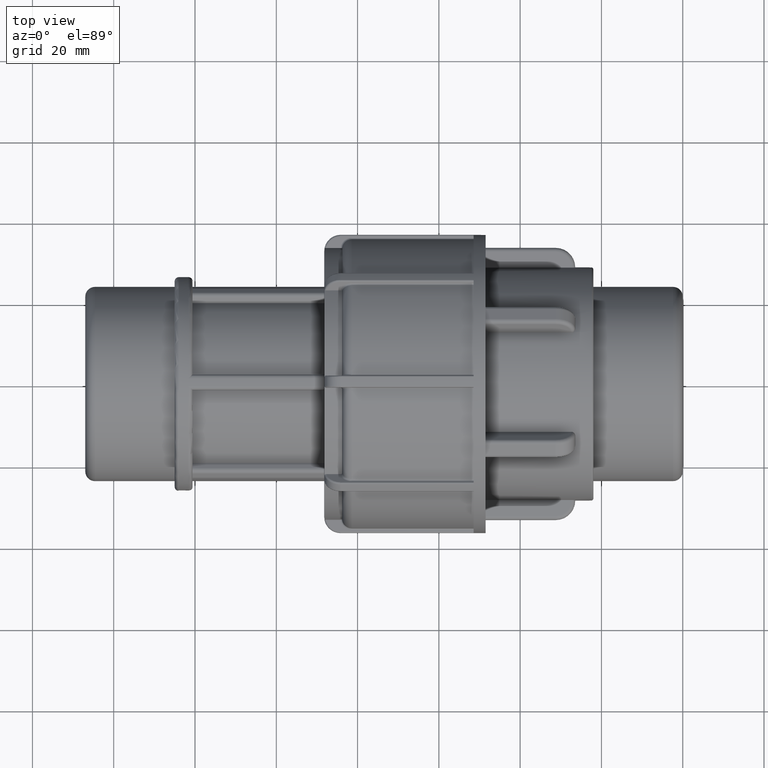
[diagram: clean part render]
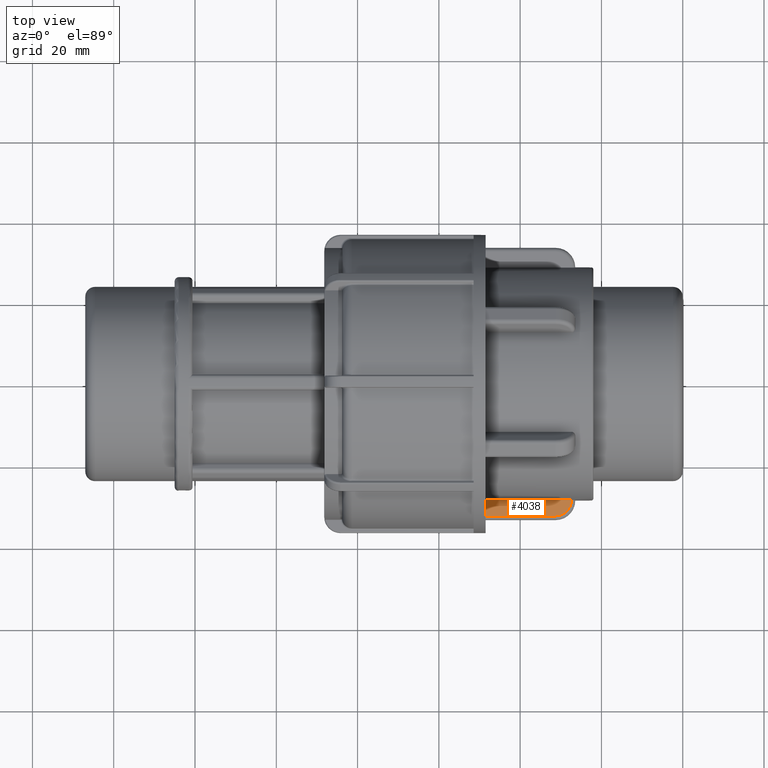
[diagram: same view with one face highlighted and labeled with its STEP entity id]
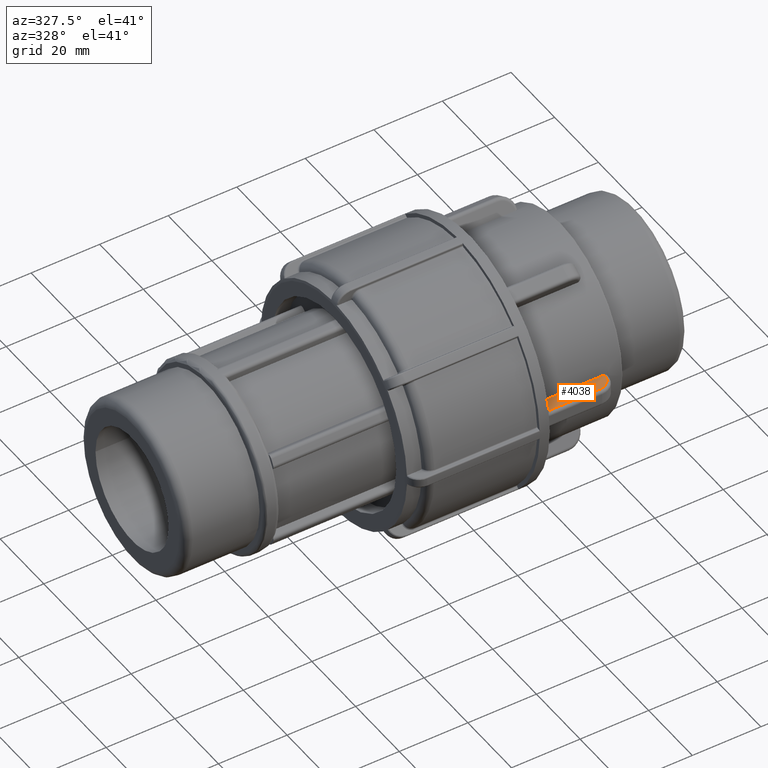
[diagram: same view with one face highlighted and labeled with its STEP entity id]
A machine part, top view. The second image highlights one B-rep face of the part: STEP entity #4038.
A second angle (auxiliary view) of the same face is appended — the face is thin or edge-on in the first view.
In plain terms, the highlighted planar face has unit normal (0, 0, 1).
Its self-contained STEP definition (entity closure, byte-faithful):
#70=PLANE('',#4315);
#195=FACE_OUTER_BOUND('',#445,.T.);
#445=EDGE_LOOP('',(#2717,#2718,#2719,#2720,#2721));
#832=LINE('',#6132,#1094);
#834=LINE('',#6144,#1096);
#835=LINE('',#6147,#1097);
#836=LINE('',#6148,#1098);
#1094=VECTOR('',#4855,0.099763084876181);
#1096=VECTOR('',#4869,17.2697);
#1097=VECTOR('',#4872,21.09394);
#1098=VECTOR('',#4873,3.92400308487618);
#1354=CIRCLE('',#4312,3.82424);
#1630=VERTEX_POINT('',#6116);
#1633=VERTEX_POINT('',#6121);
#1634=VERTEX_POINT('',#6134);
#1636=VERTEX_POINT('',#6140);
#1638=VERTEX_POINT('',#6146);
#2051=EDGE_CURVE('',#1633,#1630,#832,.T.);
#2054=EDGE_CURVE('',#1630,#1634,#1354,.T.);
#2057=EDGE_CURVE('',#1634,#1636,#834,.T.);
#2058=EDGE_CURVE('',#1638,#1633,#835,.T.);
#2059=EDGE_CURVE('',#1636,#1638,#836,.T.);
#2717=ORIENTED_EDGE('',*,*,#2057,.F.);
#2718=ORIENTED_EDGE('',*,*,#2054,.F.);
#2719=ORIENTED_EDGE('',*,*,#2051,.F.);
#2720=ORIENTED_EDGE('',*,*,#2058,.F.);
#2721=ORIENTED_EDGE('',*,*,#2059,.F.);
#4038=ADVANCED_FACE('',(#195),#70,.T.);
#4312=AXIS2_PLACEMENT_3D('',#6138,#4862,#4863);
#4315=AXIS2_PLACEMENT_3D('',#6145,#4870,#4871);
#4855=DIRECTION('',(0.,-1.,3.88578058618805E-16));
#4862=DIRECTION('center_axis',(0.,-3.88578058618805E-16,-1.));
#4863=DIRECTION('ref_axis',(0.707106781186547,-0.707106781186547,2.74766180269661E-16));
#4869=DIRECTION('',(-1.,0.,0.));
#4870=DIRECTION('center_axis',(0.,3.88578058618805E-16,1.));
#4871=DIRECTION('ref_axis',(0.,-1.,3.99680288865056E-16));
#4872=DIRECTION('',(1.,0.,0.));
#4873=DIRECTION('',(0.,1.,-3.88578058618805E-16));
#6116=CARTESIAN_POINT('',(-27.41606,-28.6818,2.39015));
#6121=CARTESIAN_POINT('',(-27.41606,-28.5820369151238,2.39015));
#6132=CARTESIAN_POINT('',(-27.41606,-20.9138125,2.39015));
#6134=CARTESIAN_POINT('',(-31.2403,-32.50604,2.39015000000001));
#6138=CARTESIAN_POINT('Origin',(-31.2403,-28.6818,2.39015));
#6140=CARTESIAN_POINT('',(-48.51,-32.50604,2.39015000000001));
#6144=CARTESIAN_POINT('',(-48.51,-32.50604,2.39015000000001));
#6145=CARTESIAN_POINT('Origin',(-48.51,-16.73105,2.39015));
#6146=CARTESIAN_POINT('',(-48.51,-28.5820369151238,2.39015));
#6147=CARTESIAN_POINT('',(-35.255,-28.5820369151238,2.39015));
#6148=CARTESIAN_POINT('',(-48.51,5.975375,2.39014999999999));